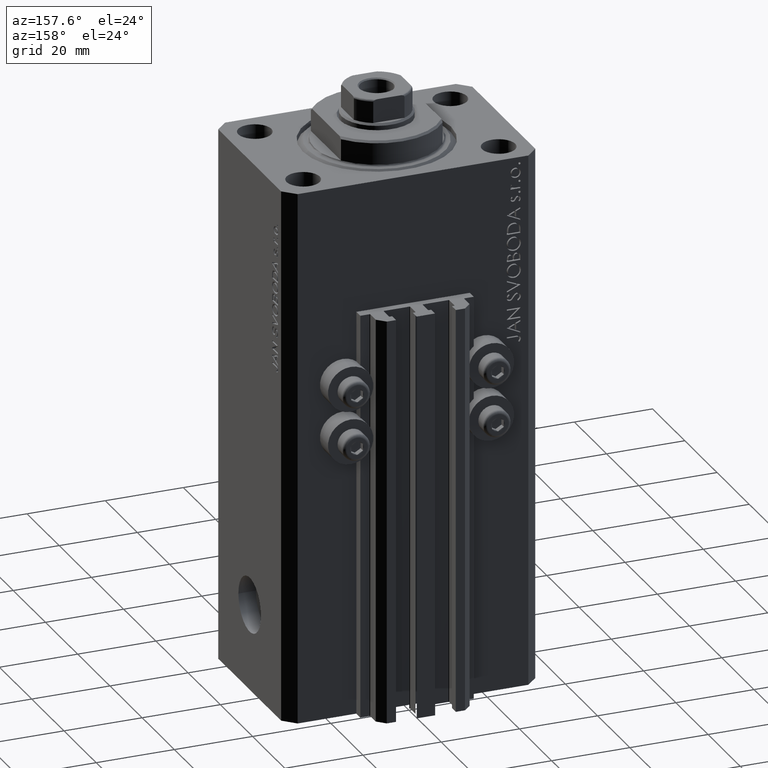
[diagram: clean part render]
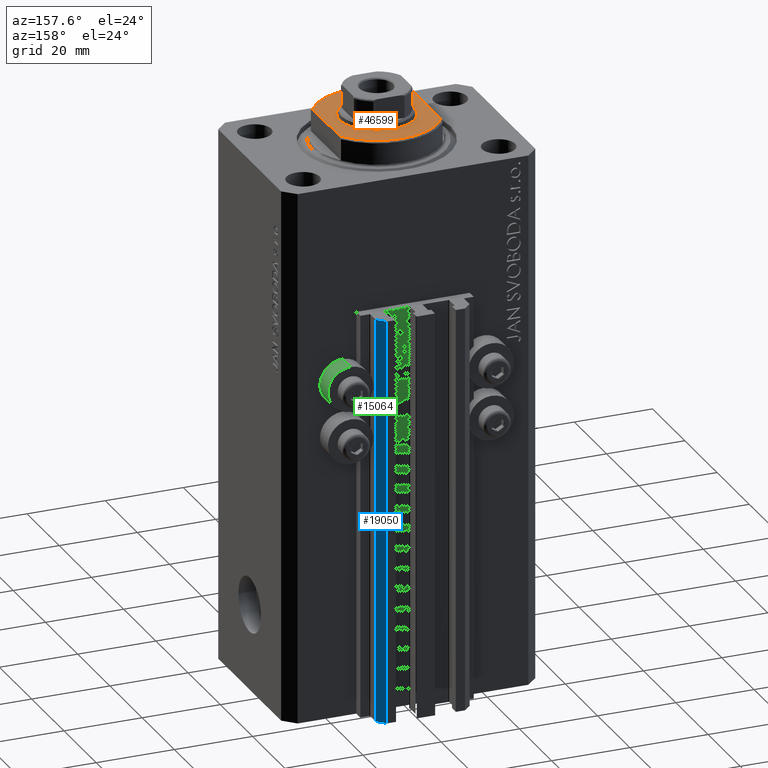
[diagram: same view with three faces highlighted in distinct colors, each labeled with its STEP entity id]
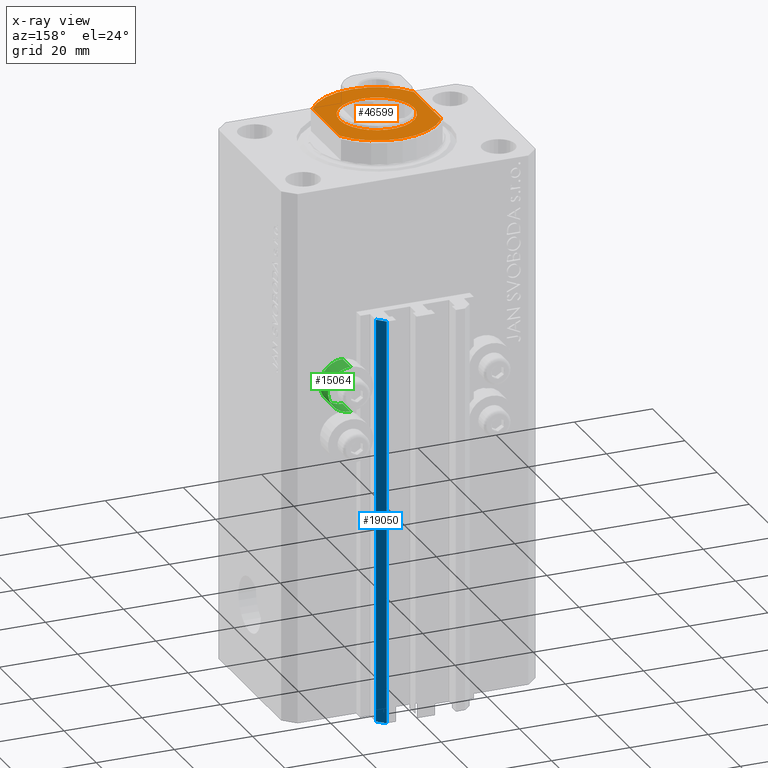
[diagram: x-ray of the same camera — body ghosted, the three highlighted faces saturated]
A machine part, auxiliary view with three faces highlighted in distinct colors.
The next image is the same camera in x-ray (body ghosted, the three faces saturated) — at least one of them is partly hidden behind the body in this view.
Their STEP definitions:

[orange] entity #46599 — the highlighted planar face has unit normal (0, 0, 1).
#968 = VERTEX_POINT ( 'NONE', #14787 ) ;
#1342 = FACE_BOUND ( 'NONE', #20962, .T. ) ;
#1699 = LINE ( 'NONE', #12937, #24120 ) ;
#2257 = CIRCLE ( 'NONE', #6079, 15.50000000000003730 ) ;
#4862 = DIRECTION ( 'NONE',  ( -1.000000000000000000, 0.000000000000000000, 0.000000000000000000 ) ) ;
#4945 = CARTESIAN_POINT ( 'NONE',  ( 0.000000000000000000, 0.000000000000000000, -6.500000000000000000 ) ) ;
#6079 = AXIS2_PLACEMENT_3D ( 'NONE', #36474, #33114, #21653 ) ;
#6461 = CARTESIAN_POINT ( 'NONE',  ( 13.00000000000000000, -8.440971508067137918, -6.500000000000000000 ) ) ;
#7990 = AXIS2_PLACEMENT_3D ( 'NONE', #34795, #24251, #31203 ) ;
#8211 = ORIENTED_EDGE ( 'NONE', *, *, #35848, .T. ) ;
#9000 = PLANE ( 'NONE',  #45740 ) ;
#9183 = VERTEX_POINT ( 'NONE', #32192 ) ;
#9457 = CARTESIAN_POINT ( 'NONE',  ( 0.000000000000000000, 0.000000000000000000, -6.500000000000000000 ) ) ;
#11409 = CARTESIAN_POINT ( 'NONE',  ( 13.00000000000000000, 8.440971508067137918, -6.500000000000000000 ) ) ;
#11771 = VERTEX_POINT ( 'NONE', #11409 ) ;
#11919 = LINE ( 'NONE', #26491, #20195 ) ;
#12093 = ORIENTED_EDGE ( 'NONE', *, *, #44404, .T. ) ;
#12478 = DIRECTION ( 'NONE',  ( 0.000000000000000000, -1.000000000000000000, -0.000000000000000000 ) ) ;
#12937 = CARTESIAN_POINT ( 'NONE',  ( 13.00000000000000000, -43.08131845707602992, -6.500000000000000000 ) ) ;
#13045 = DIRECTION ( 'NONE',  ( -0.000000000000000000, -0.000000000000000000, 1.000000000000000000 ) ) ;
#14502 = VERTEX_POINT ( 'NONE', #42309 ) ;
#14787 = CARTESIAN_POINT ( 'NONE',  ( -13.00000000000000000, -8.440971508067137918, -6.500000000000000000 ) ) ;
#15549 = CARTESIAN_POINT ( 'NONE',  ( -9.500000000000001776, 0.000000000000000000, -6.500000000000000000 ) ) ;
#16179 = DIRECTION ( 'NONE',  ( -1.000000000000000000, 0.000000000000000000, -0.000000000000000000 ) ) ;
#17151 = ORIENTED_EDGE ( 'NONE', *, *, #23572, .T. ) ;
#17368 = EDGE_CURVE ( 'NONE', #24841, #9183, #25467, .T. ) ;
#19680 = DIRECTION ( 'NONE',  ( -0.000000000000000000, -0.000000000000000000, 1.000000000000000000 ) ) ;
#20195 = VECTOR ( 'NONE', #37975, 1000.000000000000000 ) ;
#20652 = EDGE_CURVE ( 'NONE', #14502, #968, #11919, .T. ) ;
#20962 = EDGE_LOOP ( 'NONE', ( #22438, #12093 ) ) ;
#21139 = EDGE_CURVE ( 'NONE', #45456, #968, #41617, .T. ) ;
#21653 = DIRECTION ( 'NONE',  ( -1.000000000000000000, 0.000000000000000000, 0.000000000000000000 ) ) ;
#22438 = ORIENTED_EDGE ( 'NONE', *, *, #17368, .T. ) ;
#23572 = EDGE_CURVE ( 'NONE', #11771, #45456, #1699, .T. ) ;
#24120 = VECTOR ( 'NONE', #12478, 1000.000000000000000 ) ;
#24251 = DIRECTION ( 'NONE',  ( 0.000000000000000000, 0.000000000000000000, -1.000000000000000000 ) ) ;
#24841 = VERTEX_POINT ( 'NONE', #15549 ) ;
#25467 = CIRCLE ( 'NONE', #39999, 9.500000000000001776 ) ;
#25734 = CIRCLE ( 'NONE', #37988, 9.500000000000001776 ) ;
#26491 = CARTESIAN_POINT ( 'NONE',  ( -13.00000000000000000, -43.08131845707602992, -6.500000000000000000 ) ) ;
#27380 = DIRECTION ( 'NONE',  ( -1.000000000000000000, 0.000000000000000000, 0.000000000000000000 ) ) ;
#30291 = ORIENTED_EDGE ( 'NONE', *, *, #21139, .T. ) ;
#31203 = DIRECTION ( 'NONE',  ( -1.000000000000000000, 0.000000000000000000, 0.000000000000000000 ) ) ;
#32192 = CARTESIAN_POINT ( 'NONE',  ( 9.500000000000001776, 1.163414459189985880E-15, -6.500000000000000000 ) ) ;
#33114 = DIRECTION ( 'NONE',  ( 0.000000000000000000, 0.000000000000000000, -1.000000000000000000 ) ) ;
#34795 = CARTESIAN_POINT ( 'NONE',  ( 0.000000000000000000, 0.000000000000000000, -6.500000000000000000 ) ) ;
#35848 = EDGE_CURVE ( 'NONE', #14502, #11771, #2257, .T. ) ;
#36474 = CARTESIAN_POINT ( 'NONE',  ( 0.000000000000000000, 0.000000000000000000, -6.500000000000000000 ) ) ;
#37639 = CARTESIAN_POINT ( 'NONE',  ( 0.000000000000000000, 0.000000000000000000, -6.500000000000000000 ) ) ;
#37975 = DIRECTION ( 'NONE',  ( -0.000000000000000000, -1.000000000000000000, -0.000000000000000000 ) ) ;
#37988 = AXIS2_PLACEMENT_3D ( 'NONE', #9457, #13045, #27380 ) ;
#38659 = DIRECTION ( 'NONE',  ( 0.000000000000000000, 0.000000000000000000, -1.000000000000000000 ) ) ;
#39999 = AXIS2_PLACEMENT_3D ( 'NONE', #37639, #19680, #4862 ) ;
#40878 = EDGE_LOOP ( 'NONE', ( #8211, #17151, #30291, #45665 ) ) ;
#41617 = CIRCLE ( 'NONE', #7990, 15.50000000000003730 ) ;
#42309 = CARTESIAN_POINT ( 'NONE',  ( -13.00000000000000000, 8.440971508067137918, -6.500000000000000000 ) ) ;
#44404 = EDGE_CURVE ( 'NONE', #9183, #24841, #25734, .T. ) ;
#45456 = VERTEX_POINT ( 'NONE', #6461 ) ;
#45665 = ORIENTED_EDGE ( 'NONE', *, *, #20652, .F. ) ;
#45740 = AXIS2_PLACEMENT_3D ( 'NONE', #4945, #38659, #16179 ) ;
#45848 = FACE_OUTER_BOUND ( 'NONE', #40878, .T. ) ;
#46599 = ADVANCED_FACE ( 'NONE', ( #1342, #45848 ), #9000, .T. ) ;

[blue] entity #19050 — the highlighted planar face has unit normal (0.7071, 0.7071, 0).
#1028 = VECTOR ( 'NONE', #10057, 1000.000000000000000 ) ;
#2403 = CARTESIAN_POINT ( 'NONE',  ( 9.999999999999994671, 30.49999999999949551, -137.0000000000000000 ) ) ;
#2806 = ORIENTED_EDGE ( 'NONE', *, *, #18962, .T. ) ;
#3035 = CARTESIAN_POINT ( 'NONE',  ( 12.00000000000000178, 28.49999999999950973, -33.00000000000000000 ) ) ;
#6062 = FACE_OUTER_BOUND ( 'NONE', #20115, .T. ) ;
#6214 = VERTEX_POINT ( 'NONE', #36155 ) ;
#8130 = CARTESIAN_POINT ( 'NONE',  ( 12.00000000000000178, 28.49999999999950973, -137.0000000000000000 ) ) ;
#8231 = CARTESIAN_POINT ( 'NONE',  ( 12.00000000000000178, 28.49999999999950973, -137.0000000000000000 ) ) ;
#10057 = DIRECTION ( 'NONE',  ( 0.000000000000000000, 0.000000000000000000, 1.000000000000000000 ) ) ;
#11606 = LINE ( 'NONE', #8231, #26267 ) ;
#11970 = DIRECTION ( 'NONE',  ( 0.000000000000000000, 0.000000000000000000, 1.000000000000000000 ) ) ;
#13059 = ORIENTED_EDGE ( 'NONE', *, *, #24805, .F. ) ;
#16592 = DIRECTION ( 'NONE',  ( -0.7071067811865509034, 0.7071067811865441310, 0.000000000000000000 ) ) ;
#17174 = DIRECTION ( 'NONE',  ( -0.7071067811865507924, 0.7071067811865441310, 0.000000000000000000 ) ) ;
#17398 = LINE ( 'NONE', #3035, #39629 ) ;
#17715 = EDGE_CURVE ( 'NONE', #35169, #41796, #34695, .T. ) ;
#18962 = EDGE_CURVE ( 'NONE', #6214, #35169, #11606, .T. ) ;
#18985 = CARTESIAN_POINT ( 'NONE',  ( 9.999999999999994671, 30.49999999999949551, -137.0000000000000000 ) ) ;
#19050 = ADVANCED_FACE ( 'NONE', ( #6062 ), #30953, .T. ) ;
#19304 = VERTEX_POINT ( 'NONE', #46964 ) ;
#20115 = EDGE_LOOP ( 'NONE', ( #39566, #13059, #2806, #38241 ) ) ;
#24235 = DIRECTION ( 'NONE',  ( 0.7071067811865441310, 0.7071067811865509034, -0.000000000000000000 ) ) ;
#24805 = EDGE_CURVE ( 'NONE', #6214, #19304, #30139, .T. ) ;
#26267 = VECTOR ( 'NONE', #30239, 1000.000000000000000 ) ;
#28348 = EDGE_CURVE ( 'NONE', #19304, #41796, #17398, .T. ) ;
#30139 = LINE ( 'NONE', #8130, #44117 ) ;
#30239 = DIRECTION ( 'NONE',  ( -0.7071067811865507924, 0.7071067811865441310, 0.000000000000000000 ) ) ;
#30854 = AXIS2_PLACEMENT_3D ( 'NONE', #38609, #24235, #16592 ) ;
#30902 = CARTESIAN_POINT ( 'NONE',  ( 9.999999999999994671, 30.49999999999949551, -33.00000000000000000 ) ) ;
#30953 = PLANE ( 'NONE',  #30854 ) ;
#34695 = LINE ( 'NONE', #2403, #1028 ) ;
#35169 = VERTEX_POINT ( 'NONE', #18985 ) ;
#36155 = CARTESIAN_POINT ( 'NONE',  ( 12.00000000000000178, 28.49999999999950973, -137.0000000000000000 ) ) ;
#38241 = ORIENTED_EDGE ( 'NONE', *, *, #17715, .T. ) ;
#38609 = CARTESIAN_POINT ( 'NONE',  ( 12.00000000000000178, 28.49999999999950973, -137.0000000000000000 ) ) ;
#39566 = ORIENTED_EDGE ( 'NONE', *, *, #28348, .F. ) ;
#39629 = VECTOR ( 'NONE', #17174, 1000.000000000000000 ) ;
#41796 = VERTEX_POINT ( 'NONE', #30902 ) ;
#44117 = VECTOR ( 'NONE', #11970, 1000.000000000000000 ) ;
#46964 = CARTESIAN_POINT ( 'NONE',  ( 12.00000000000000178, 28.49999999999950973, -33.00000000000000000 ) ) ;

[green] entity #15064 — the highlighted cylindrical surface (edge-blend (fillet) strip) has radius 5.8 mm, axis along (0, 1, 0).
#1865 = AXIS2_PLACEMENT_3D ( 'NONE', #23868, #15746, #42301 ) ;
#2502 = CARTESIAN_POINT ( 'NONE',  ( 18.00000000000000355, 27.49999999996051514, -44.60000000000000142 ) ) ;
#3463 = VERTEX_POINT ( 'NONE', #28734 ) ;
#5360 = CARTESIAN_POINT ( 'NONE',  ( 18.00000000000000355, 22.49999999999951328, -56.20000000000000284 ) ) ;
#6586 = DIRECTION ( 'NONE',  ( 0.000000000000000000, 1.000000000000000000, 0.000000000000000000 ) ) ;
#6798 = DIRECTION ( 'NONE',  ( -0.000000000000000000, -1.000000000000000000, -0.000000000000000000 ) ) ;
#8218 = DIRECTION ( 'NONE',  ( 0.000000000000000000, 0.000000000000000000, 1.000000000000000000 ) ) ;
#9175 = EDGE_CURVE ( 'NONE', #42677, #3463, #24764, .T. ) ;
#9486 = AXIS2_PLACEMENT_3D ( 'NONE', #28577, #6798, #21396 ) ;
#11532 = ORIENTED_EDGE ( 'NONE', *, *, #9175, .T. ) ;
#11593 = CYLINDRICAL_SURFACE ( 'NONE', #43871, 5.799999999999999822 ) ;
#14924 = EDGE_CURVE ( 'NONE', #42677, #26972, #38518, .T. ) ;
#15064 = ADVANCED_FACE ( 'NONE', ( #25918 ), #11593, .T. ) ;
#15746 = DIRECTION ( 'NONE',  ( -0.000000000000000000, -1.000000000000000000, -0.000000000000000000 ) ) ;
#16756 = EDGE_CURVE ( 'NONE', #3463, #38827, #33956, .T. ) ;
#16862 = LINE ( 'NONE', #2502, #44950 ) ;
#21396 = DIRECTION ( 'NONE',  ( 0.000000000000000000, 0.000000000000000000, 1.000000000000000000 ) ) ;
#22244 = VECTOR ( 'NONE', #6586, 1000.000000000000000 ) ;
#23293 = EDGE_LOOP ( 'NONE', ( #34589, #11532, #33048, #30735 ) ) ;
#23868 = CARTESIAN_POINT ( 'NONE',  ( 18.00000000000000355, 27.49999999996051514, -50.39999999999999858 ) ) ;
#24764 = LINE ( 'NONE', #46541, #22244 ) ;
#25918 = FACE_OUTER_BOUND ( 'NONE', #23293, .T. ) ;
#26476 = EDGE_CURVE ( 'NONE', #26972, #38827, #16862, .T. ) ;
#26972 = VERTEX_POINT ( 'NONE', #29156 ) ;
#27847 = DIRECTION ( 'NONE',  ( 0.000000000000000000, 1.000000000000000000, 0.000000000000000000 ) ) ;
#28577 = CARTESIAN_POINT ( 'NONE',  ( 18.00000000000000355, 22.49999999999951328, -50.39999999999999858 ) ) ;
#28734 = CARTESIAN_POINT ( 'NONE',  ( 18.00000000000000355, 27.49999999996051514, -56.20000000000000284 ) ) ;
#29156 = CARTESIAN_POINT ( 'NONE',  ( 18.00000000000000355, 22.49999999999951328, -44.60000000000000142 ) ) ;
#30719 = CARTESIAN_POINT ( 'NONE',  ( 18.00000000000000355, 27.49999999996051514, -44.60000000000000142 ) ) ;
#30735 = ORIENTED_EDGE ( 'NONE', *, *, #26476, .F. ) ;
#33048 = ORIENTED_EDGE ( 'NONE', *, *, #16756, .T. ) ;
#33956 = CIRCLE ( 'NONE', #1865, 5.799999999999999822 ) ;
#34589 = ORIENTED_EDGE ( 'NONE', *, *, #14924, .F. ) ;
#38518 = CIRCLE ( 'NONE', #9486, 5.799999999999999822 ) ;
#38827 = VERTEX_POINT ( 'NONE', #30719 ) ;
#40765 = CARTESIAN_POINT ( 'NONE',  ( 18.00000000000000355, 27.49999999996051514, -50.39999999999999858 ) ) ;
#40999 = DIRECTION ( 'NONE',  ( 0.000000000000000000, 1.000000000000000000, 0.000000000000000000 ) ) ;
#42301 = DIRECTION ( 'NONE',  ( 0.000000000000000000, 0.000000000000000000, 1.000000000000000000 ) ) ;
#42677 = VERTEX_POINT ( 'NONE', #5360 ) ;
#43871 = AXIS2_PLACEMENT_3D ( 'NONE', #40765, #40999, #8218 ) ;
#44950 = VECTOR ( 'NONE', #27847, 1000.000000000000000 ) ;
#46541 = CARTESIAN_POINT ( 'NONE',  ( 18.00000000000000355, 27.49999999996051514, -56.20000000000000284 ) ) ;